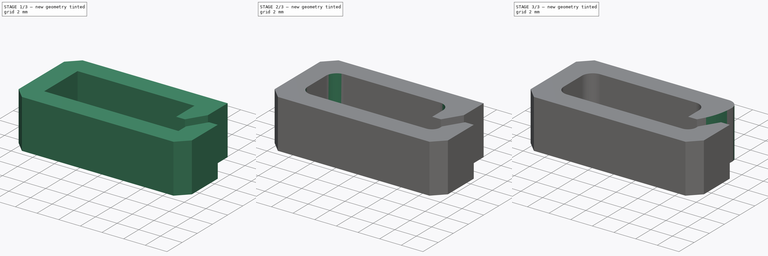
[diagram: build sequence overview — one tinted view per stage of 3, left to right]
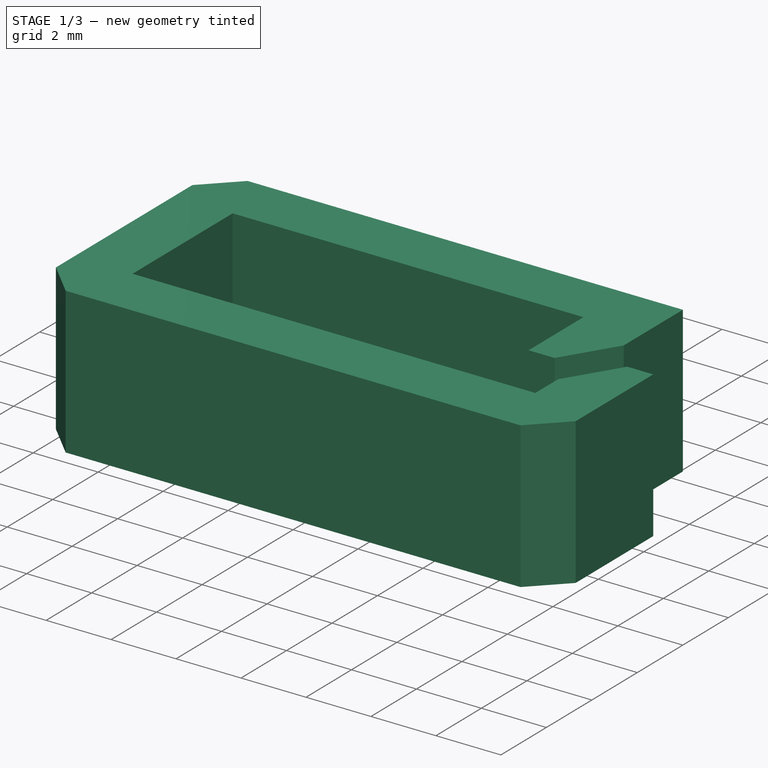
[diagram: stage 1 of 3 — iso view after this stage's code; geometry added in this stage tinted green]
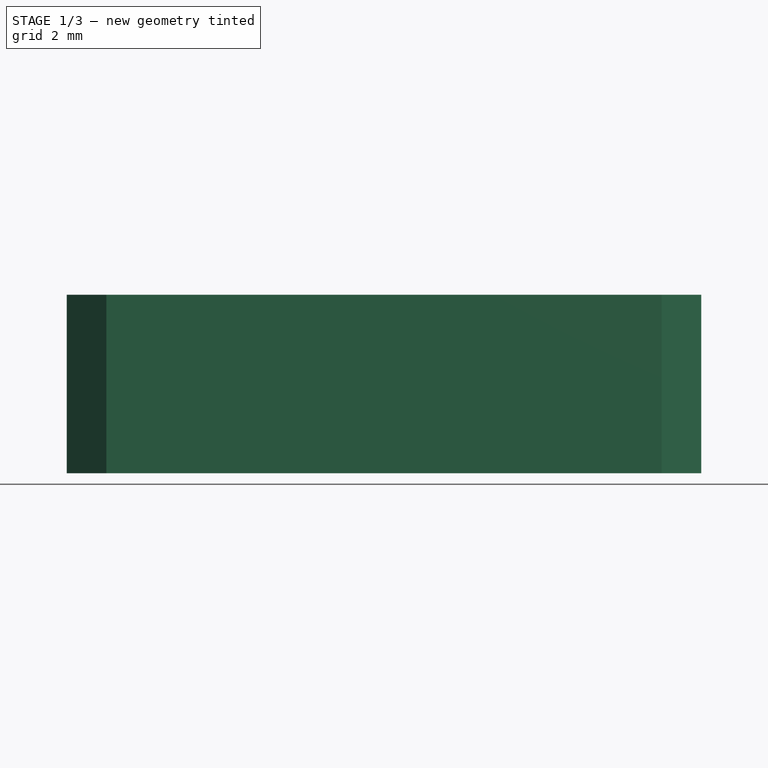
[diagram: stage 1 of 3 — front view after this stage's code; geometry added in this stage tinted green]
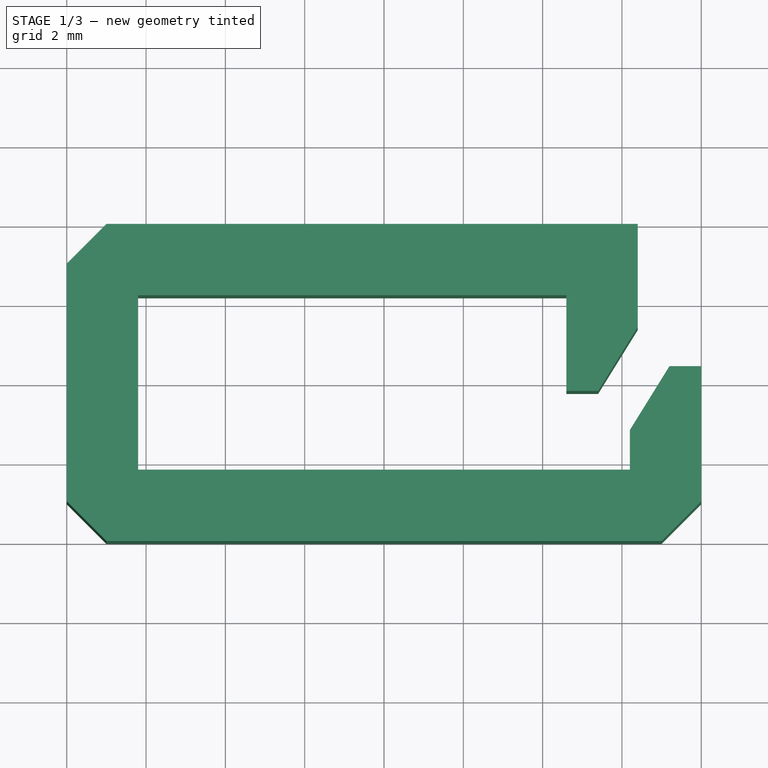
[diagram: stage 1 of 3 — top view after this stage's code; geometry added in this stage tinted green]
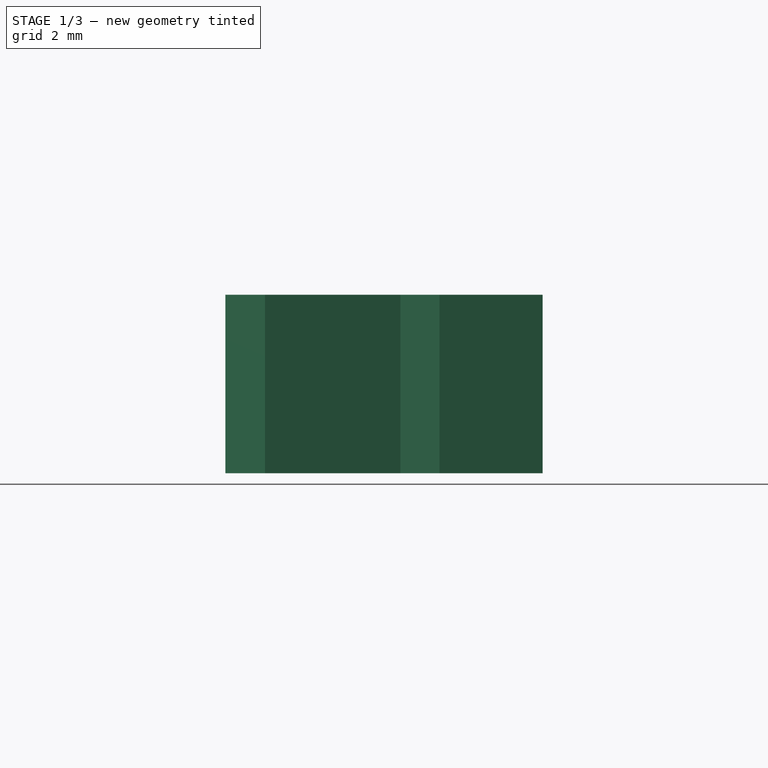
[diagram: stage 1 of 3 — right view after this stage's code; geometry added in this stage tinted green]
FCSTD DOCUMENT  (FreeCAD 0.19R24276 (Git))
Label: Cable_routing_clamp_16*8*4.5
License: All rights reserved
LicenseURL: http://en.wikipedia.org/wiki/All_rights_reserved
objects: PartDesign::Fillet×4, Sketcher::SketchObject×1, PartDesign::Pad×1, PartDesign::Chamfer×1, PartDesign::Body×1
note: 14 computed .brp shape members not serialized (recipe doc carries the construction recipe); baked Part::Feature solids carry a one-line shape summary decoded from their .brp

FEATURE [Sketcher::SketchObject] Sketch
  FullyConstrained = true
  MapMode = 5
  Support = -> [XY_Plane]
  sketch-geometry (15):
    g0: LineSegment StartX=0 StartY=0 StartZ=0 EndX=0 EndY=8 EndZ=0
    g1: LineSegment StartX=0 StartY=8 StartZ=0 EndX=14.4 EndY=8 EndZ=0
    g2: LineSegment StartX=14.4 StartY=8 StartZ=0 EndX=14.4 EndY=5.4 EndZ=0
    g3: LineSegment StartX=12.6 StartY=3.787 StartZ=0 EndX=12.6 EndY=6.2 EndZ=0
    g4: LineSegment StartX=12.6 StartY=6.2 StartZ=0 EndX=1.8 EndY=6.2 EndZ=0
    g5: LineSegment StartX=1.8 StartY=6.2 StartZ=0 EndX=1.8 EndY=1.8 EndZ=0
    g6: LineSegment StartX=1.8 StartY=1.8 StartZ=0 EndX=14.2 EndY=1.8 EndZ=0
    g7: LineSegment StartX=16 StartY=4.413 StartZ=0 EndX=16 EndY=0 EndZ=0
    g8: LineSegment StartX=16 StartY=0 StartZ=0 EndX=0 EndY=0 EndZ=0
    g9: LineSegment StartX=14.2 StartY=1.8 StartZ=0 EndX=14.2 EndY=2.8 EndZ=0
    g10: LineSegment StartX=12.6 StartY=3.787 StartZ=0 EndX=13.4 EndY=3.787 EndZ=0
    g11: LineSegment StartX=13.4 StartY=3.787 StartZ=0 EndX=14.4 EndY=5.4 EndZ=0
    g12: LineSegment StartX=13.4 StartY=3.787 StartZ=0 EndX=14.4199 EndY=3.1547 EndZ=0
    g13: LineSegment StartX=14.2 StartY=2.8 StartZ=0 EndX=15.2 EndY=4.413 EndZ=0
    g14: LineSegment StartX=15.2 StartY=4.413 StartZ=0 EndX=16 EndY=4.413 EndZ=0
  constraints (44):
    c: Coincident(g-1,g0)
    c: PointOnObject(g0,g-2)
    c: Coincident(g0,g1)
    c: Horizontal(g1)
    c: Coincident(g1,g2)
    c: Vertical(g2)
    c: Vertical(g3)
    c: Coincident(g3,g4)
    c: Horizontal(g4)
    c: Coincident(g4,g5)
    c: Vertical(g5)
    c: Coincident(g5,g6)
    c: Horizontal(g6)
    c: PointOnObject(g7,g-1)
    c: Coincident(g7,g8)
    c: Coincident(g8,g0)
    c: Vertical(g7)
    c: DistanceX(g3,g2) = 1.8
    c: DistanceX(g0,g5) = 1.8
    c: DistanceY(g0,g5) = 1.8
    c: DistanceY(g4,g0) = 1.8
    c: DistanceX(g8,g8) = 16
    c: DistanceY(g0,g0) = 8
    c: Coincident(g9,g6)
    c: DistanceY(g9,g9) = 1
    c: Vertical(g9)
    c: DistanceX(g9,g7) = 1.8
    c: Coincident(g3,g10)
    c: Horizontal(g10)
    c: Coincident(g10,g11)
    c: Coincident(g11,g2)
    c: DistanceX(g10,g10) = 0.8
    c: Coincident(g12,g10)
    c: Distance(g12) = 1.2
    c: Coincident(g9,g13)
    c: Coincident(g13,g14)
    c: Coincident(g14,g7)
    c: Horizontal(g14)
    c: PointOnObject(g12,g13)
    c: Perpendicular(g13,g12)
    c: Parallel(g11,g13)
    c: Equal(g14,g10)
    c: DistanceY(g2,g2) = 2.6
    c: DistanceX(g1,g1) = 14.4
FEATURE [PartDesign::Pad] Pad
  Direction = (1,1,1)
  Length = 4.5
  Length2 = 100
  Profile = -> Sketch
  Type = 0
FEATURE [PartDesign::Chamfer] Chamfer
  Angle = 45
  Base = -> Pad [Edge29,Edge26,Edge23]
  BaseFeature = -> Pad
  ChamferType = 0
  FlipDirection = false
  Size = 1
  Size2 = 1
  SupportTransform = false
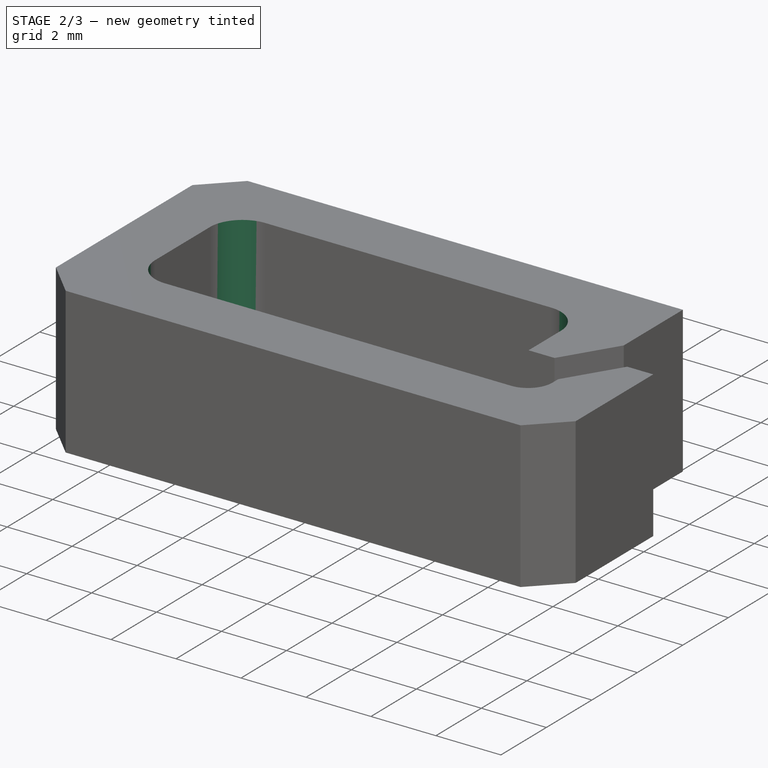
[diagram: stage 2 of 3 — iso view after this stage's code; geometry added in this stage tinted green]
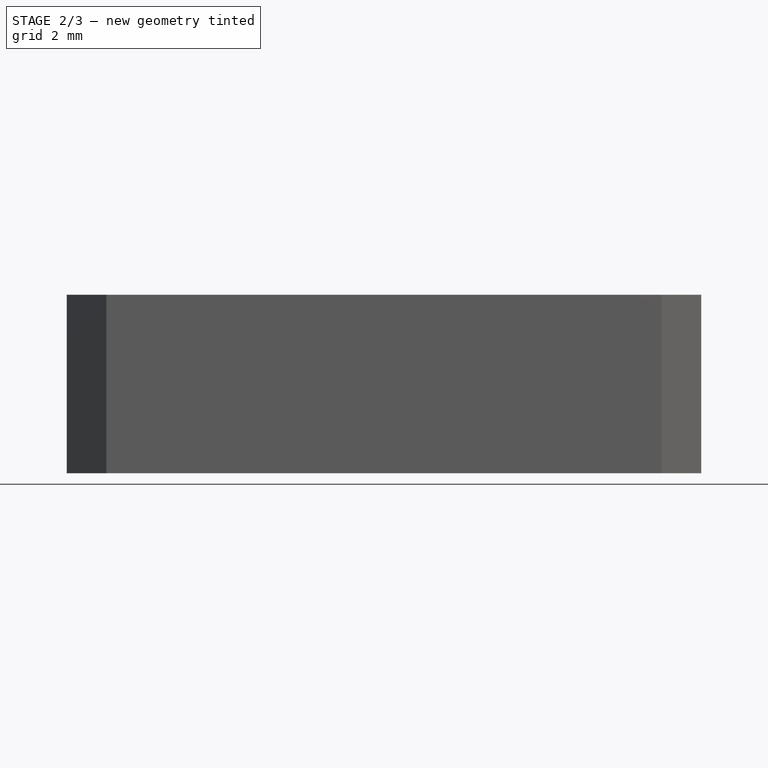
[diagram: stage 2 of 3 — front view after this stage's code; geometry added in this stage tinted green]
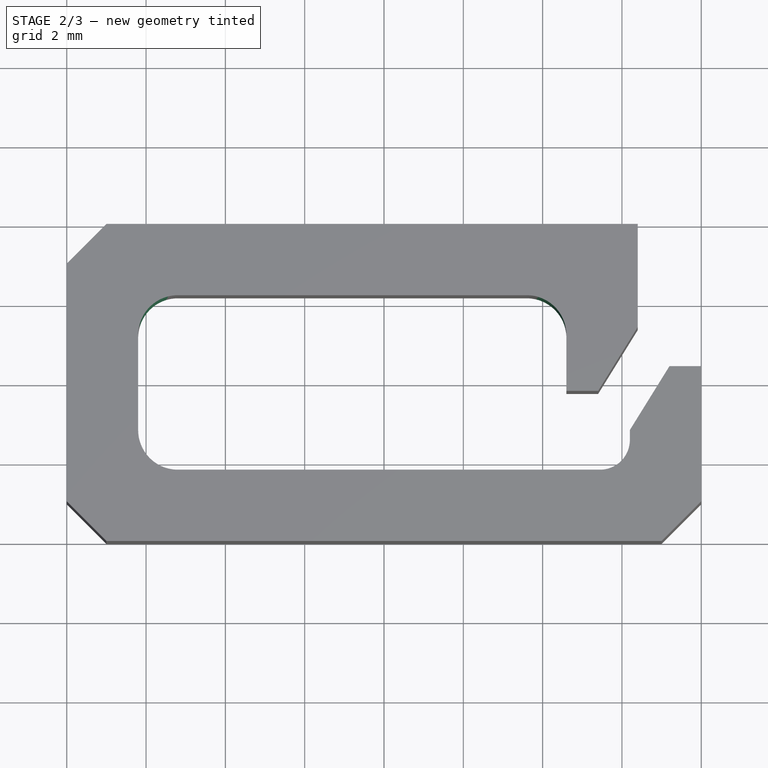
[diagram: stage 2 of 3 — top view after this stage's code; geometry added in this stage tinted green]
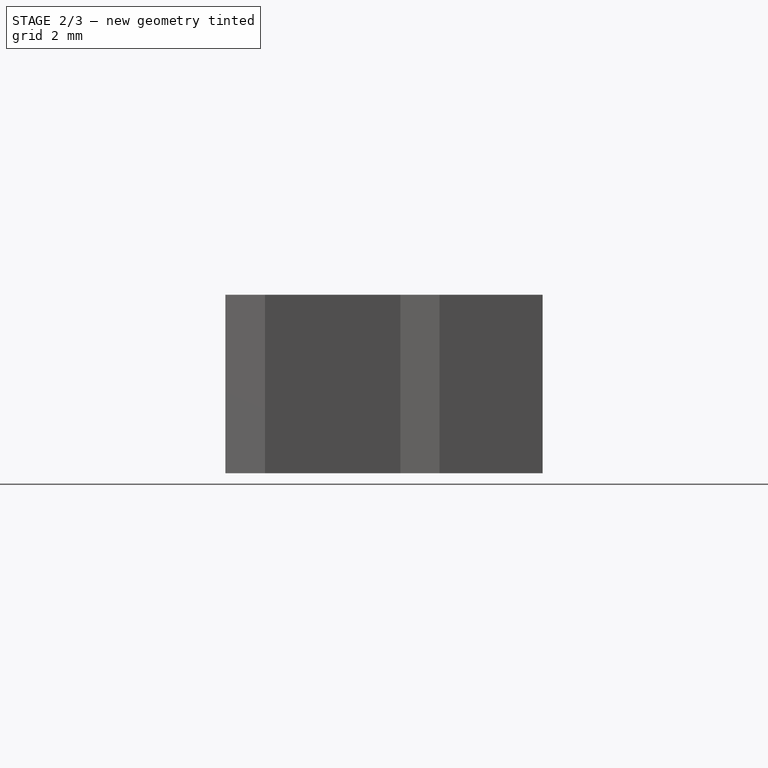
[diagram: stage 2 of 3 — right view after this stage's code; geometry added in this stage tinted green]
FEATURE [PartDesign::Fillet] Fillet
  Base = -> Chamfer [Edge46,Edge44,Edge48]
  BaseFeature = -> Chamfer
  Radius = 1
  SupportTransform = false
FEATURE [PartDesign::Fillet] Fillet001
  Base = -> Fillet [Edge22]
  BaseFeature = -> Fillet
  Radius = 0.75
  SupportTransform = false
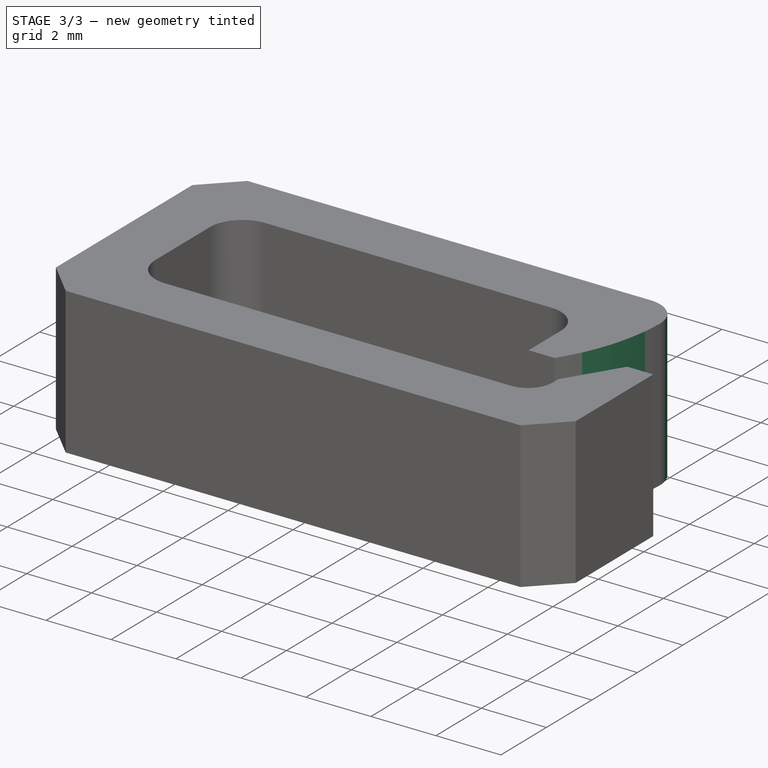
[diagram: stage 3 of 3 — iso view after this stage's code; geometry added in this stage tinted green]
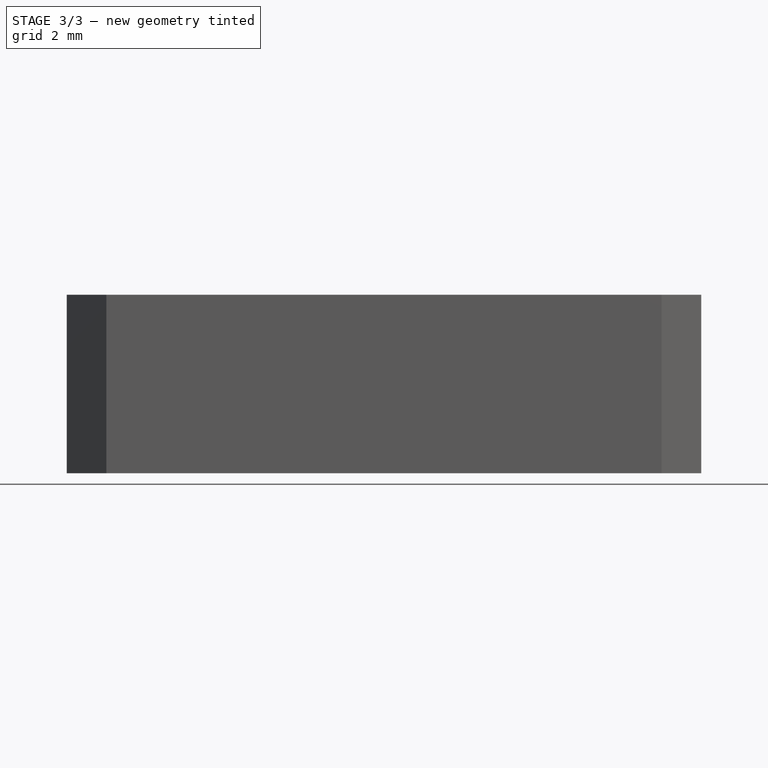
[diagram: stage 3 of 3 — front view after this stage's code; geometry added in this stage tinted green]
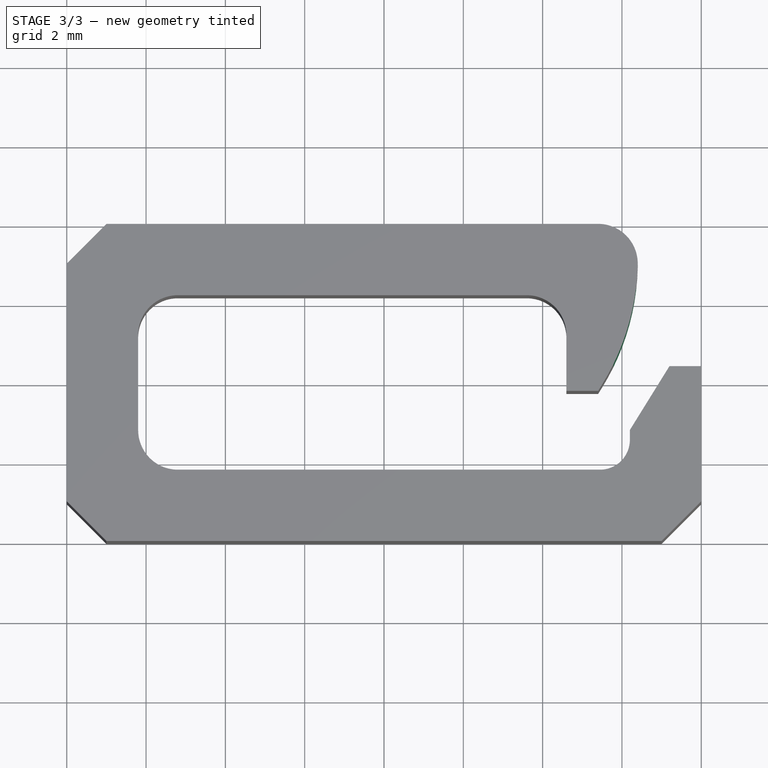
[diagram: stage 3 of 3 — top view after this stage's code; geometry added in this stage tinted green]
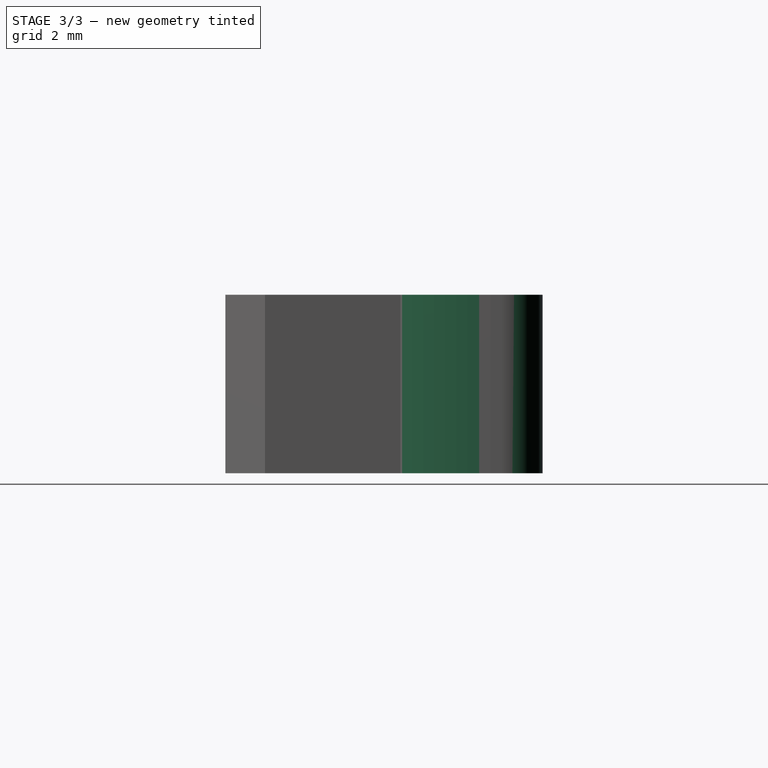
[diagram: stage 3 of 3 — right view after this stage's code; geometry added in this stage tinted green]
FEATURE [PartDesign::Fillet] Fillet002
  Base = -> Fillet001 [Edge55]
  BaseFeature = -> Fillet001
  Radius = 6
  SupportTransform = false
FEATURE [PartDesign::Fillet] Fillet003
  Base = -> Fillet002 [Edge30]
  BaseFeature = -> Fillet002
  Radius = 1
  SupportTransform = false
FEATURE [PartDesign::Body] Body
  Group = -> [Sketch,Pad,Chamfer,Fillet,Fillet001,Fillet002,Fillet003]
  Origin = -> Origin
  Tip = -> Fillet003
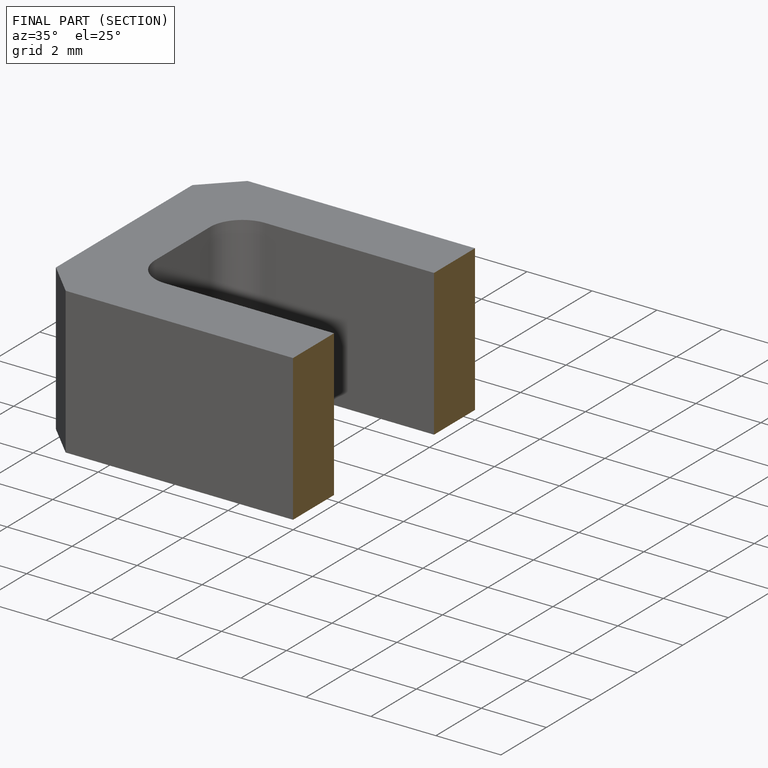
[diagram: finished part — half-section view (interior)]
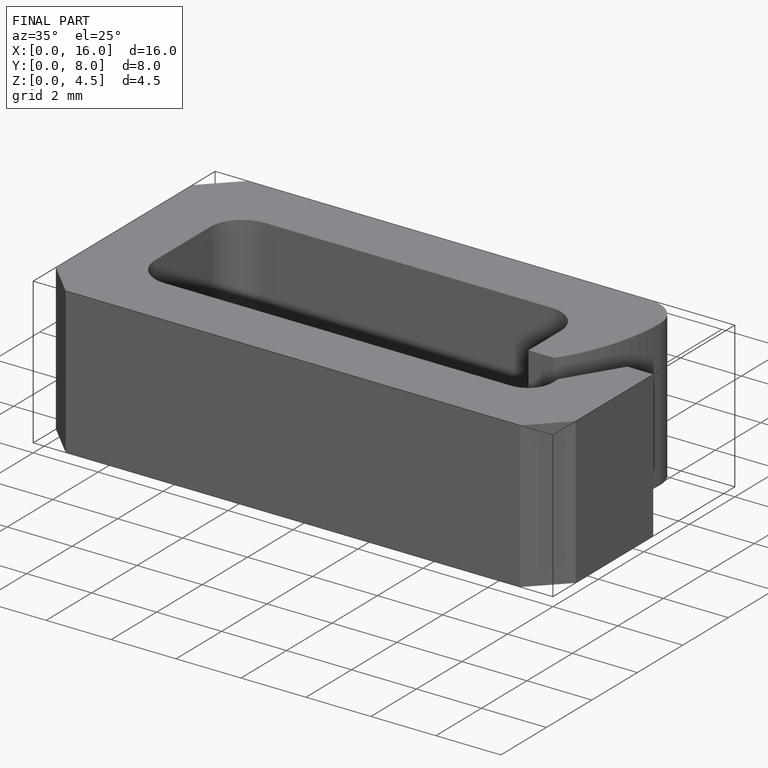
[diagram: finished part — iso view with bounding-box wireframe]
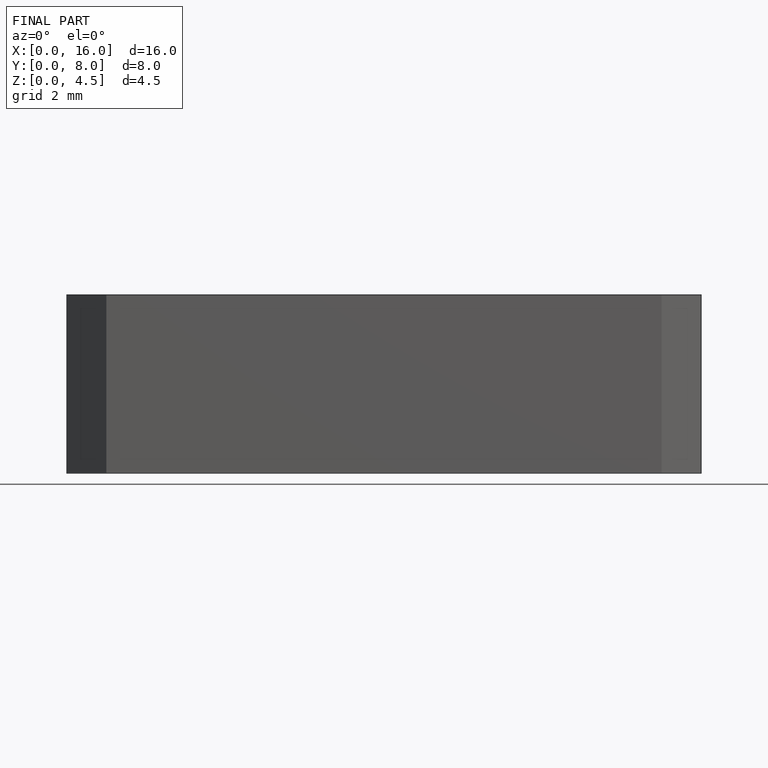
[diagram: finished part — front view with bounding-box wireframe]
